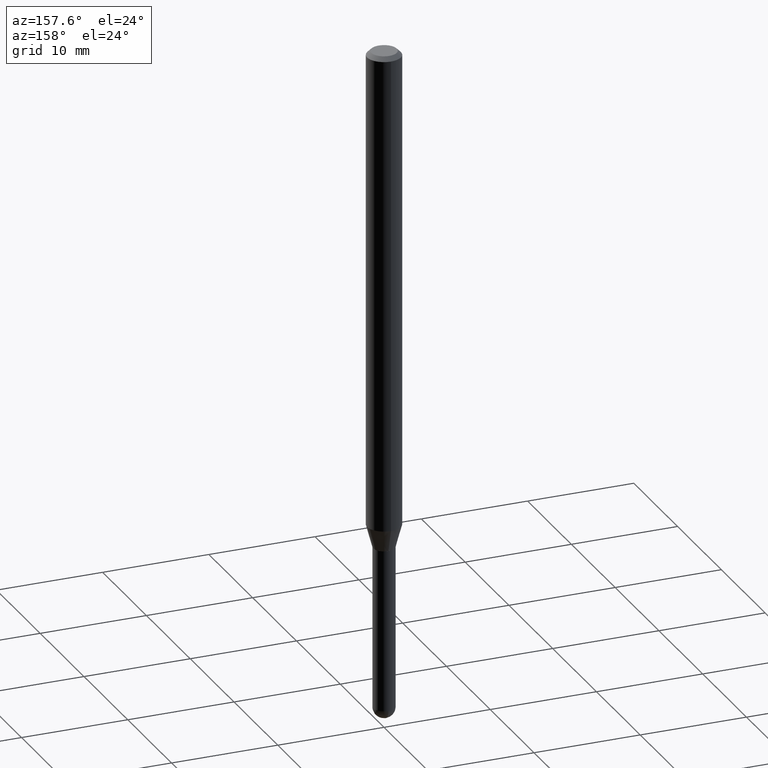
[diagram: clean part render]
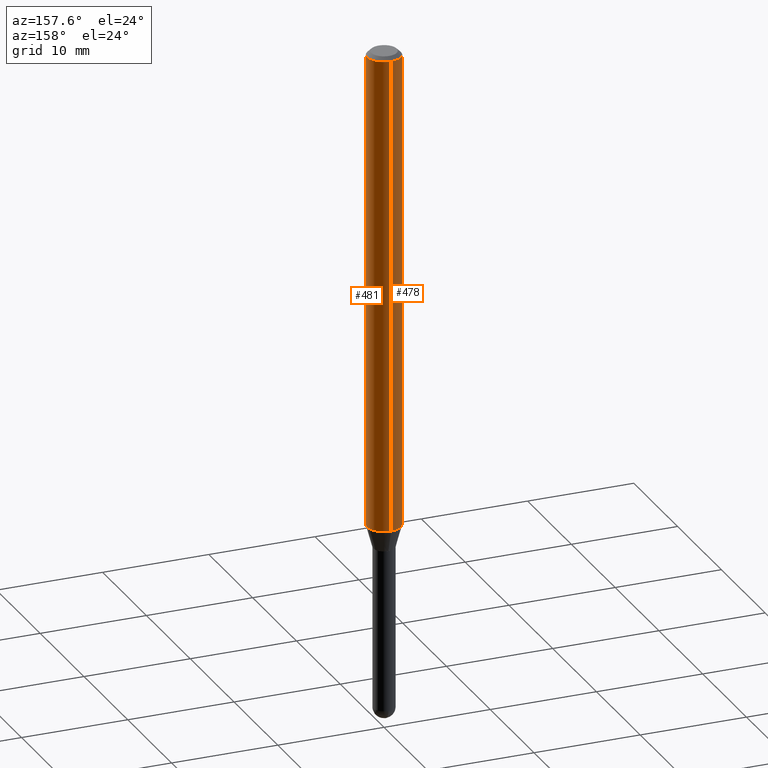
[diagram: same view with one multi-face feature highlighted, each face labeled with its STEP entity id]
A machine part, auxiliary view. The highlighted faces form ONE feature: a constant-radius fillet chain: 2 tangent blend faces with common blend radius 1.5875 mm. The faces share edges in the B-rep.
Their STEP definitions:
[1] entity #478 (Cylinder):
#33 = VECTOR ( 'NONE', #54, 39.37007874015748143 ) ;
#42 = CIRCLE ( 'NONE', #426, 0.06250000000000000000 ) ;
#51 = ORIENTED_EDGE ( 'NONE', *, *, #237, .F. ) ;
#52 = EDGE_CURVE ( 'NONE', #113, #234, #219, .T. ) ;
#54 = DIRECTION ( 'NONE',  ( -2.445468705842391654E-29, 3.491481482539668084E-15, 1.000000000000000000 ) ) ;
#55 = CYLINDRICAL_SURFACE ( 'NONE', #436, 0.06250000000000000000 ) ;
#57 = DIRECTION ( 'NONE',  ( -6.982962677686265922E-15, -1.000000000000000000, 3.491481482539668084E-15 ) ) ;
#58 = DIRECTION ( 'NONE',  ( -2.445468705842391373E-29, 3.491481482539668084E-15, 1.000000000000000000 ) ) ;
#80 = EDGE_LOOP ( 'NONE', ( #51, #364, #132, #280 ) ) ;
#90 = CARTESIAN_POINT ( 'NONE',  ( 0.000000000000000000, 0.000000000000000000, 0.000000000000000000 ) ) ;
#113 = VERTEX_POINT ( 'NONE', #193 ) ;
#130 = AXIS2_PLACEMENT_3D ( 'NONE', #256, #58, #213 ) ;
#132 = ORIENTED_EDGE ( 'NONE', *, *, #52, .T. ) ;
#137 = FACE_OUTER_BOUND ( 'NONE', #80, .T. ) ;
#155 = DIRECTION ( 'NONE',  ( -2.445468705842391373E-29, 3.491481482539668084E-15, 1.000000000000000000 ) ) ;
#190 = LINE ( 'NONE', #212, #33 ) ;
#193 = CARTESIAN_POINT ( 'NONE',  ( -4.364351673553478876E-16, -0.06250000000000616174, -1.776028856829703351 ) ) ;
#196 = CARTESIAN_POINT ( 'NONE',  ( -4.364351673553912750E-16, -0.06250000000000005551, -0.01499999999999984852 ) ) ;
#208 = VERTEX_POINT ( 'NONE', #259 ) ;
#212 = CARTESIAN_POINT ( 'NONE',  ( 4.440892098500625669E-16, 0.06250000000000000000, -2.182175926587292553E-16 ) ) ;
#213 = DIRECTION ( 'NONE',  ( -6.982962677686265922E-15, -1.000000000000000000, 4.370956789862821150E-15 ) ) ;
#219 = LINE ( 'NONE', #388, #461 ) ;
#234 = VERTEX_POINT ( 'NONE', #196 ) ;
#237 = EDGE_CURVE ( 'NONE', #208, #348, #190, .T. ) ;
#252 = CARTESIAN_POINT ( 'NONE',  ( 4.440892098501062007E-16, 0.06249999999999993755, -0.01500000000000028394 ) ) ;
#256 = CARTESIAN_POINT ( 'NONE',  ( 4.343222990050076616E-29, -6.200971866077005685E-15, -1.776028856829703573 ) ) ;
#259 = CARTESIAN_POINT ( 'NONE',  ( 4.440892098501062007E-16, 0.06249999999999383826, -1.776028856829704017 ) ) ;
#260 = DIRECTION ( 'NONE',  ( -2.445468705842391373E-29, 3.491481482539668084E-15, 1.000000000000000000 ) ) ;
#280 = ORIENTED_EDGE ( 'NONE', *, *, #371, .F. ) ;
#320 = EDGE_CURVE ( 'NONE', #208, #113, #459, .T. ) ;
#327 = DIRECTION ( 'NONE',  ( -6.982962677686265922E-15, -1.000000000000000000, 3.483106191921935554E-15 ) ) ;
#342 = CARTESIAN_POINT ( 'NONE',  ( 3.668203058763603385E-31, -5.237222223809525349E-17, -0.01500000000000006710 ) ) ;
#348 = VERTEX_POINT ( 'NONE', #252 ) ;
#352 = DIRECTION ( 'NONE',  ( -2.445468705842391654E-29, 3.491481482539668084E-15, 1.000000000000000000 ) ) ;
#364 = ORIENTED_EDGE ( 'NONE', *, *, #320, .T. ) ;
#371 = EDGE_CURVE ( 'NONE', #348, #234, #42, .T. ) ;
#388 = CARTESIAN_POINT ( 'NONE',  ( -4.364351673553916201E-16, -0.06250000000000000000, 2.182175926587292553E-16 ) ) ;
#426 = AXIS2_PLACEMENT_3D ( 'NONE', #342, #155, #327 ) ;
#436 = AXIS2_PLACEMENT_3D ( 'NONE', #90, #260, #57 ) ;
#459 = CIRCLE ( 'NONE', #130, 0.06250000000000000000 ) ;
#461 = VECTOR ( 'NONE', #352, 39.37007874015748143 ) ;
#478 = ADVANCED_FACE ( 'NONE', ( #137 ), #55, .T. ) ;
[2] entity #481 (Cylinder):
#33 = VECTOR ( 'NONE', #54, 39.37007874015748143 ) ;
#34 = CARTESIAN_POINT ( 'NONE',  ( 3.668203058763603385E-31, -5.237222223809525349E-17, -0.01500000000000006710 ) ) ;
#52 = EDGE_CURVE ( 'NONE', #113, #234, #219, .T. ) ;
#54 = DIRECTION ( 'NONE',  ( -2.445468705842391654E-29, 3.491481482539668084E-15, 1.000000000000000000 ) ) ;
#97 = ORIENTED_EDGE ( 'NONE', *, *, #52, .F. ) ;
#109 = DIRECTION ( 'NONE',  ( -6.982962677686265922E-15, -1.000000000000000000, 4.370956789862821150E-15 ) ) ;
#113 = VERTEX_POINT ( 'NONE', #193 ) ;
#144 = DIRECTION ( 'NONE',  ( -6.982962677686265922E-15, -1.000000000000000000, 3.483106191921935554E-15 ) ) ;
#146 = CIRCLE ( 'NONE', #160, 0.06250000000000000000 ) ;
#160 = AXIS2_PLACEMENT_3D ( 'NONE', #462, #203, #109 ) ;
#168 = CARTESIAN_POINT ( 'NONE',  ( 0.000000000000000000, 0.000000000000000000, 0.000000000000000000 ) ) ;
#178 = EDGE_CURVE ( 'NONE', #234, #348, #254, .T. ) ;
#190 = LINE ( 'NONE', #212, #33 ) ;
#193 = CARTESIAN_POINT ( 'NONE',  ( -4.364351673553478876E-16, -0.06250000000000616174, -1.776028856829703351 ) ) ;
#196 = CARTESIAN_POINT ( 'NONE',  ( -4.364351673553912750E-16, -0.06250000000000005551, -0.01499999999999984852 ) ) ;
#203 = DIRECTION ( 'NONE',  ( -2.445468705842391373E-29, 3.491481482539668084E-15, 1.000000000000000000 ) ) ;
#208 = VERTEX_POINT ( 'NONE', #259 ) ;
#212 = CARTESIAN_POINT ( 'NONE',  ( 4.440892098500625669E-16, 0.06250000000000000000, -2.182175926587292553E-16 ) ) ;
#219 = LINE ( 'NONE', #388, #461 ) ;
#224 = AXIS2_PLACEMENT_3D ( 'NONE', #34, #312, #144 ) ;
#234 = VERTEX_POINT ( 'NONE', #196 ) ;
#237 = EDGE_CURVE ( 'NONE', #208, #348, #190, .T. ) ;
#252 = CARTESIAN_POINT ( 'NONE',  ( 4.440892098501062007E-16, 0.06249999999999993755, -0.01500000000000028394 ) ) ;
#254 = CIRCLE ( 'NONE', #224, 0.06250000000000000000 ) ;
#259 = CARTESIAN_POINT ( 'NONE',  ( 4.440892098501062007E-16, 0.06249999999999383826, -1.776028856829704017 ) ) ;
#288 = ORIENTED_EDGE ( 'NONE', *, *, #237, .T. ) ;
#306 = DIRECTION ( 'NONE',  ( -2.445468705842391373E-29, 3.491481482539668084E-15, 1.000000000000000000 ) ) ;
#312 = DIRECTION ( 'NONE',  ( -2.445468705842391373E-29, 3.491481482539668084E-15, 1.000000000000000000 ) ) ;
#333 = ORIENTED_EDGE ( 'NONE', *, *, #338, .T. ) ;
#338 = EDGE_CURVE ( 'NONE', #113, #208, #146, .T. ) ;
#348 = VERTEX_POINT ( 'NONE', #252 ) ;
#350 = DIRECTION ( 'NONE',  ( -6.982962677686265922E-15, -1.000000000000000000, 3.491481482539668084E-15 ) ) ;
#352 = DIRECTION ( 'NONE',  ( -2.445468705842391654E-29, 3.491481482539668084E-15, 1.000000000000000000 ) ) ;
#384 = CYLINDRICAL_SURFACE ( 'NONE', #396, 0.06250000000000000000 ) ;
#388 = CARTESIAN_POINT ( 'NONE',  ( -4.364351673553916201E-16, -0.06250000000000000000, 2.182175926587292553E-16 ) ) ;
#396 = AXIS2_PLACEMENT_3D ( 'NONE', #168, #306, #350 ) ;
#420 = ORIENTED_EDGE ( 'NONE', *, *, #178, .F. ) ;
#427 = FACE_OUTER_BOUND ( 'NONE', #469, .T. ) ;
#461 = VECTOR ( 'NONE', #352, 39.37007874015748143 ) ;
#462 = CARTESIAN_POINT ( 'NONE',  ( 4.343222990050076616E-29, -6.200971866077005685E-15, -1.776028856829703573 ) ) ;
#469 = EDGE_LOOP ( 'NONE', ( #333, #288, #420, #97 ) ) ;
#481 = ADVANCED_FACE ( 'NONE', ( #427 ), #384, .T. ) ;